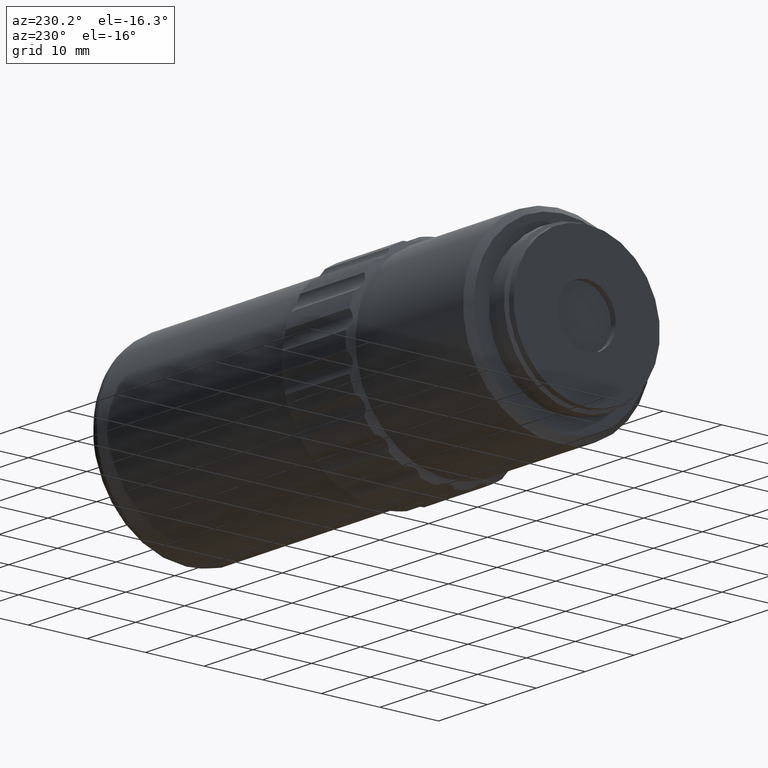
[diagram: clean part render]
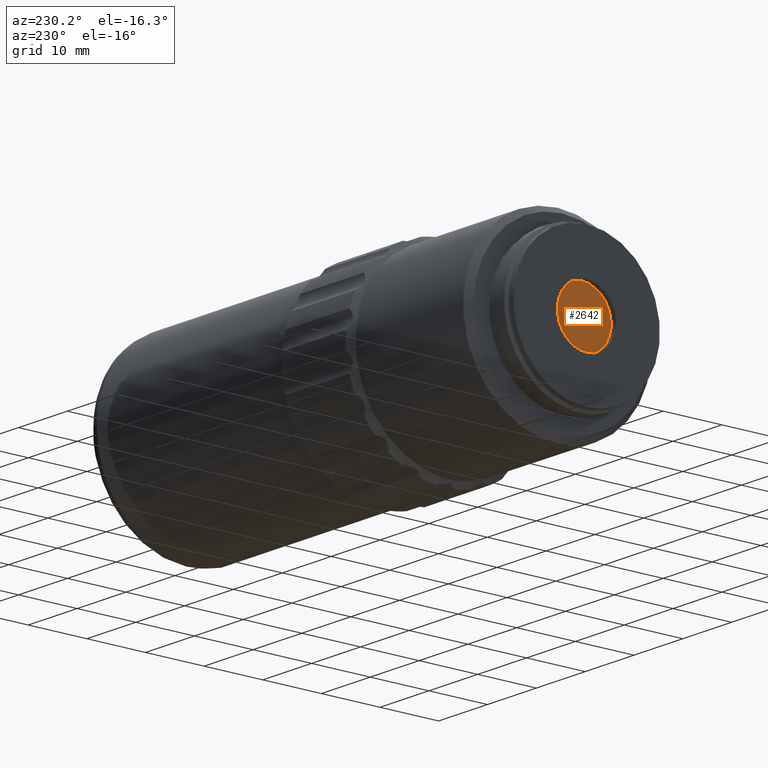
[diagram: same view with one face highlighted and labeled with its STEP entity id]
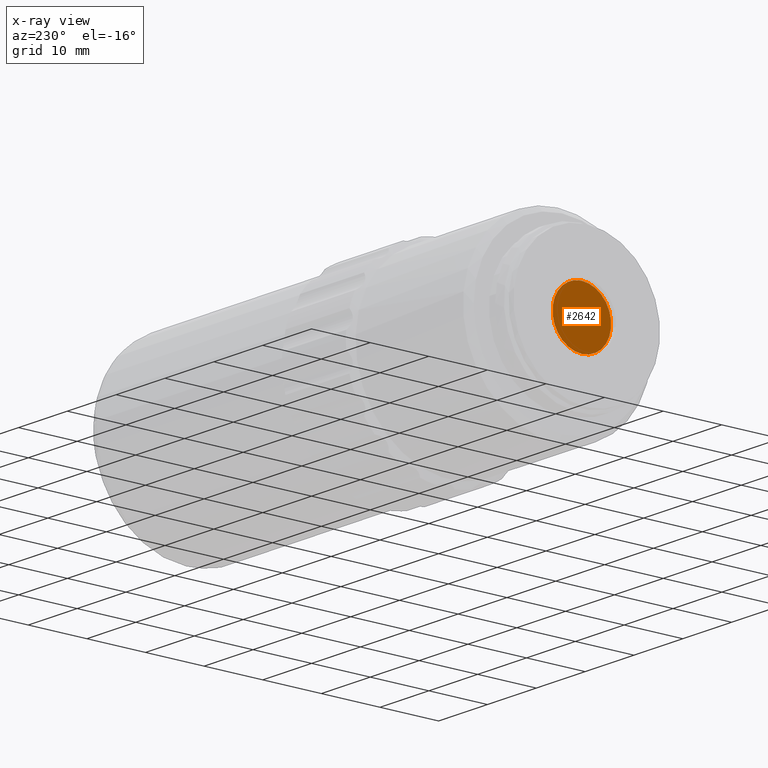
[diagram: x-ray of the same camera — body ghosted, the highlighted face saturated]
A machine part, auxiliary view. The second image highlights one B-rep face of the part: STEP entity #2642.
The next image is the same camera in x-ray: the body ghosted, the highlighted face saturated — about 0% of this face is hidden behind the body in this view.
In plain terms, the highlighted planar face has unit normal (-1, 0, 0).
Its self-contained STEP definition (entity closure, byte-faithful):
#8 = VERTEX_POINT ( 'NONE', #888 ) ;
#252 = DIRECTION ( 'NONE',  ( -1.000000000000000000, 0.000000000000000000, 0.000000000000000000 ) ) ;
#397 = CIRCLE ( 'NONE', #2337, 5.000000000000000000 ) ;
#630 = CARTESIAN_POINT ( 'NONE',  ( -8.553141965121202617, 46.02096199999999726, 0.000000000000000000 ) ) ;
#857 = DIRECTION ( 'NONE',  ( -1.000000000000000000, 0.000000000000000000, 0.000000000000000000 ) ) ;
#865 = PLANE ( 'NONE',  #2025 ) ;
#888 = CARTESIAN_POINT ( 'NONE',  ( -8.553141965121202617, 46.02096199999999726, 5.000000000000000000 ) ) ;
#1297 = DIRECTION ( 'NONE',  ( 0.000000000000000000, 0.000000000000000000, 1.000000000000000000 ) ) ;
#1954 = FACE_OUTER_BOUND ( 'NONE', #2687, .T. ) ;
#1965 = CARTESIAN_POINT ( 'NONE',  ( -8.553141965121202617, 46.02096199999999726, 0.000000000000000000 ) ) ;
#2025 = AXIS2_PLACEMENT_3D ( 'NONE', #1965, #252, #1297 ) ;
#2223 = ORIENTED_EDGE ( 'NONE', *, *, #2439, .T. ) ;
#2337 = AXIS2_PLACEMENT_3D ( 'NONE', #630, #857, #2633 ) ;
#2439 = EDGE_CURVE ( 'NONE', #8, #8, #397, .T. ) ;
#2633 = DIRECTION ( 'NONE',  ( 0.000000000000000000, 0.000000000000000000, 1.000000000000000000 ) ) ;
#2642 = ADVANCED_FACE ( 'NONE', ( #1954 ), #865, .T. ) ;
#2687 = EDGE_LOOP ( 'NONE', ( #2223 ) ) ;